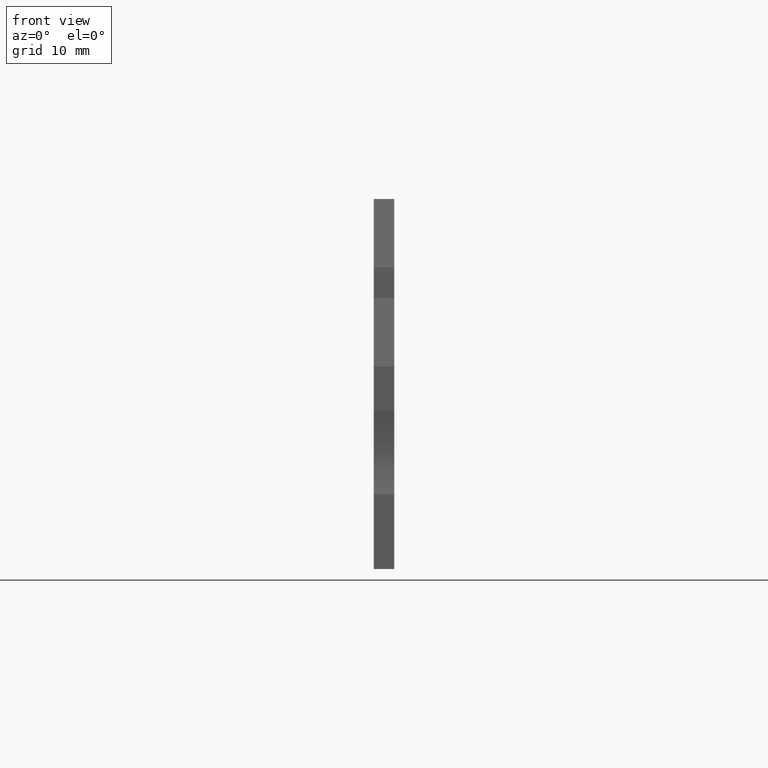
[diagram: clean part render]
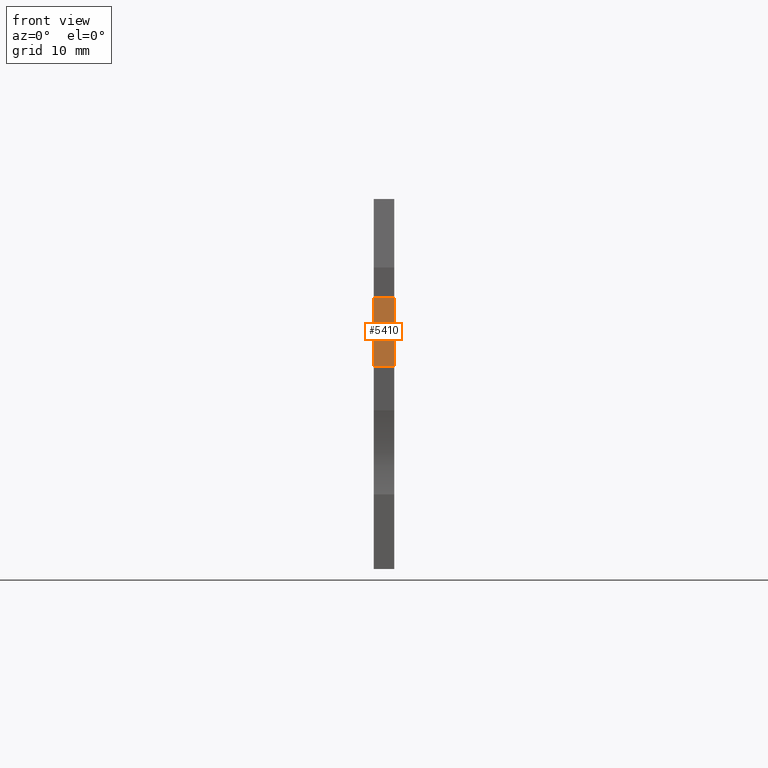
[diagram: same view with one face highlighted and labeled with its STEP entity id]
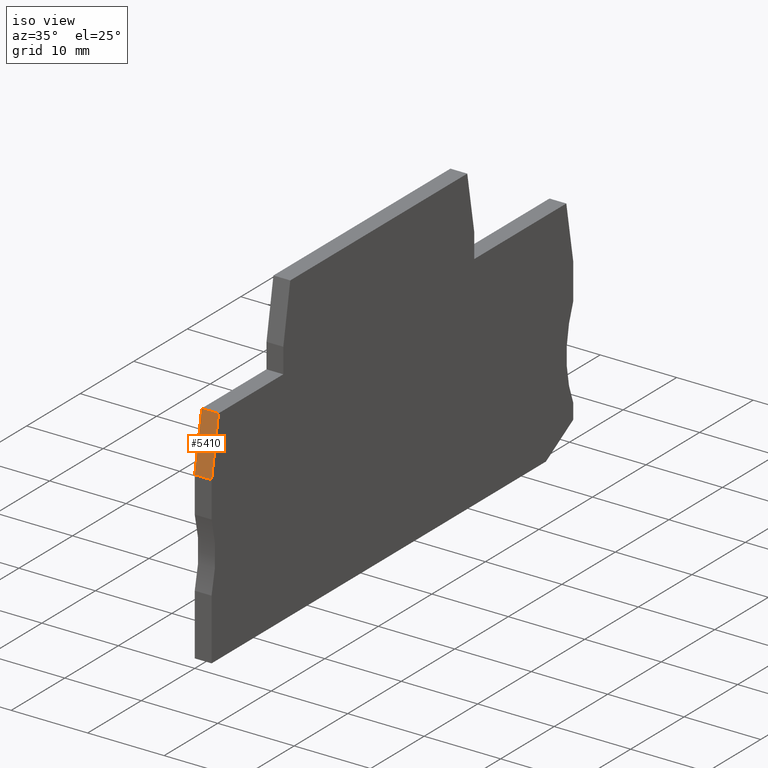
[diagram: same view with one face highlighted and labeled with its STEP entity id]
A machine part, front view. The second image highlights one B-rep face of the part: STEP entity #5410.
A second angle (iso view) of the same face is appended — the face is thin or edge-on in the first view.
In plain terms, the highlighted planar face has unit normal (0, -0.9848, 0.1736).
Its self-contained STEP definition (entity closure, byte-faithful):
#2630=CARTESIAN_POINT('',(47.8573958538972,-16.4999982489833,53.67));
#2640=DIRECTION('',(0.,0.,1.));
#2650=VECTOR('',#2640,1.);
#2660=LINE('',#2630,#2650);
#2670=CARTESIAN_POINT('',(47.8573958538972,-16.4999982489833,53.67));
#2680=VERTEX_POINT('',#2670);
#2690=CARTESIAN_POINT('',(47.8573958538972,-16.4999982489833,55.87));
#2700=VERTEX_POINT('',#2690);
#2710=EDGE_CURVE('',#2680,#2700,#2660,.T.);
#3410=CARTESIAN_POINT('',(48.6609211227738,-11.94298,55.87));
#3420=DIRECTION('',(0.173648177666926,0.984807753012209,0.));
#3430=VECTOR('',#3420,1.);
#3440=LINE('',#3410,#3430);
#3450=CARTESIAN_POINT('',(49.1533988533523,-9.15000000000308,55.87));
#3460=VERTEX_POINT('',#3450);
#3470=EDGE_CURVE('',#2700,#3460,#3440,.T.);
#4340=CARTESIAN_POINT('',(49.1533988533523,-9.15000000000308,53.67));
#4350=VERTEX_POINT('',#4340);
#4470=CARTESIAN_POINT('',(49.1533988533523,-9.15000000000308,53.67));
#4480=DIRECTION('',(0.,0.,1.));
#4490=VECTOR('',#4480,1.);
#4500=LINE('',#4470,#4490);
#4510=EDGE_CURVE('',#4350,#3460,#4500,.T.);
#5250=CARTESIAN_POINT('',(47.8573958538972,-16.4999982489833,53.67));
#5260=DIRECTION('',(-0.984807753012209,0.173648177666926,0.));
#5270=DIRECTION('',(-0.173648177666926,-0.984807753012209,0.));
#5280=AXIS2_PLACEMENT_3D('',#5250,#5260,#5270);
#5290=PLANE('',#5280);
#5300=CARTESIAN_POINT('',(48.6609211227738,-11.94298,53.67));
#5310=DIRECTION('',(0.173648177666926,0.984807753012209,0.));
#5320=VECTOR('',#5310,1.);
#5330=LINE('',#5300,#5320);
#5340=EDGE_CURVE('',#2680,#4350,#5330,.T.);
#5350=ORIENTED_EDGE('',*,*,#5340,.F.);
#5360=ORIENTED_EDGE('',*,*,#4510,.F.);
#5370=ORIENTED_EDGE('',*,*,#3470,.T.);
#5380=ORIENTED_EDGE('',*,*,#2710,.T.);
#5390=EDGE_LOOP('',(#5380,#5370,#5360,#5350));
#5400=FACE_OUTER_BOUND('',#5390,.T.);
#5410=ADVANCED_FACE('',(#5400),#5290,.T.);